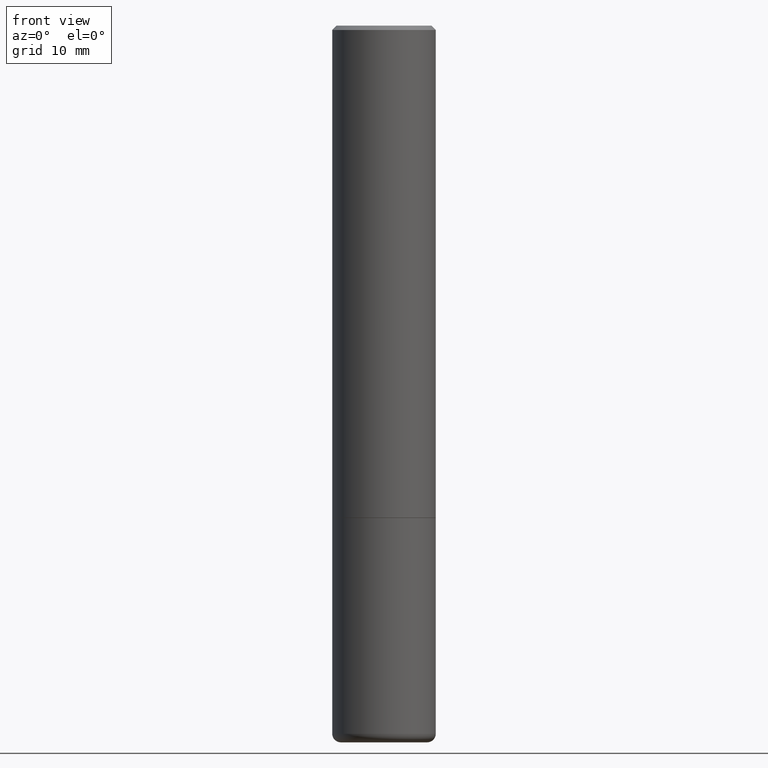
[diagram: clean part render]
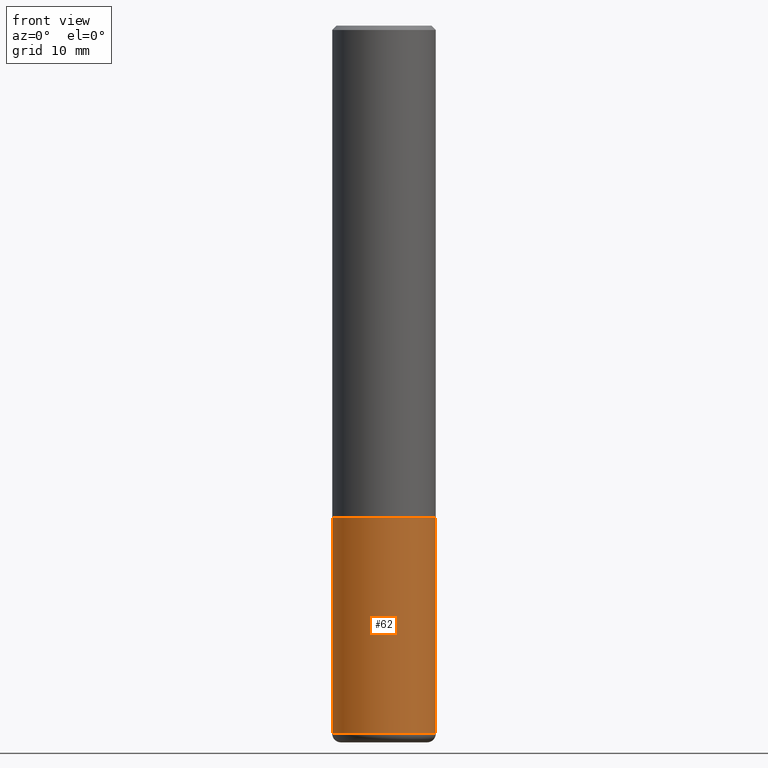
[diagram: same view with one face highlighted and labeled with its STEP entity id]
A machine part, front view. The second image highlights one B-rep face of the part: STEP entity #62.
In plain terms, the highlighted cylindrical surface (partial cylindrical patch) has radius 5.9995 mm, axis along (-0, 0, 1).
Its self-contained STEP definition (entity closure, byte-faithful):
#15 = AXIS2_PLACEMENT_3D ( 'NONE', #247, #339, #81 ) ;
#61 = LINE ( 'NONE', #167, #208 ) ;
#62 = ADVANCED_FACE ( 'NONE', ( #343 ), #254, .T. ) ;
#73 = AXIS2_PLACEMENT_3D ( 'NONE', #183, #414, #318 ) ;
#74 = VERTEX_POINT ( 'NONE', #356 ) ;
#76 = AXIS2_PLACEMENT_3D ( 'NONE', #104, #168, #388 ) ;
#81 = DIRECTION ( 'NONE',  ( 1.000000000000000000, -6.982962677686265133E-15, 0.000000000000000000 ) ) ;
#104 = CARTESIAN_POINT ( 'NONE',  ( 5.487876547960065873E-29, -7.835233272497903917E-15, -2.244100000000000428 ) ) ;
#107 = LINE ( 'NONE', #309, #204 ) ;
#112 = EDGE_CURVE ( 'NONE', #246, #205, #61, .T. ) ;
#116 = CARTESIAN_POINT ( 'NONE',  ( 0.2361999999999999933, -9.484609056967400443E-15, -2.244100000000000428 ) ) ;
#144 = ORIENTED_EDGE ( 'NONE', *, *, #382, .T. ) ;
#153 = ORIENTED_EDGE ( 'NONE', *, *, #112, .F. ) ;
#167 = CARTESIAN_POINT ( 'NONE',  ( -0.2361999999999999933, 1.678301941865356591E-15, -1.161852468318208757E-29 ) ) ;
#168 = DIRECTION ( 'NONE',  ( -2.445468806185136597E-29, 3.491481338843145583E-15, 1.000000000000000000 ) ) ;
#183 = CARTESIAN_POINT ( 'NONE',  ( 0.000000000000000000, 0.000000000000000000, 0.000000000000000000 ) ) ;
#198 = EDGE_CURVE ( 'NONE', #205, #323, #237, .T. ) ;
#202 = DIRECTION ( 'NONE',  ( -2.445468806185136877E-29, 3.491481338843145188E-15, 1.000000000000000000 ) ) ;
#204 = VECTOR ( 'NONE', #367, 39.37007874015748143 ) ;
#205 = VERTEX_POINT ( 'NONE', #362 ) ;
#208 = VECTOR ( 'NONE', #202, 39.37007874015748143 ) ;
#237 = CIRCLE ( 'NONE', #76, 0.2361999999999999933 ) ;
#241 = CIRCLE ( 'NONE', #15, 0.2361999999999999933 ) ;
#242 = ORIENTED_EDGE ( 'NONE', *, *, #324, .T. ) ;
#246 = VERTEX_POINT ( 'NONE', #310 ) ;
#247 = CARTESIAN_POINT ( 'NONE',  ( 7.894706947007477118E-29, -1.127154920618732880E-14, -3.228299999999999947 ) ) ;
#254 = CYLINDRICAL_SURFACE ( 'NONE', #73, 0.2361999999999999933 ) ;
#280 = ORIENTED_EDGE ( 'NONE', *, *, #198, .F. ) ;
#309 = CARTESIAN_POINT ( 'NONE',  ( 0.2361999999999999933, -1.649375784469496131E-15, 1.151752954443000088E-29 ) ) ;
#310 = CARTESIAN_POINT ( 'NONE',  ( -0.2362000000000000210, -9.593247264321970832E-15, -3.228299999999999947 ) ) ;
#318 = DIRECTION ( 'NONE',  ( 1.000000000000000000, -6.982962677686266711E-15, 4.876176775795936353E-29 ) ) ;
#323 = VERTEX_POINT ( 'NONE', #116 ) ;
#324 = EDGE_CURVE ( 'NONE', #246, #74, #241, .T. ) ;
#339 = DIRECTION ( 'NONE',  ( -2.445468806185136597E-29, 3.491481338843145583E-15, 1.000000000000000000 ) ) ;
#343 = FACE_OUTER_BOUND ( 'NONE', #400, .T. ) ;
#356 = CARTESIAN_POINT ( 'NONE',  ( 0.2362000000000000210, -1.292092499065682375E-14, -3.228299999999999947 ) ) ;
#362 = CARTESIAN_POINT ( 'NONE',  ( -0.2361999999999999933, -7.875089297477259967E-15, -2.244100000000000428 ) ) ;
#367 = DIRECTION ( 'NONE',  ( -2.445468806185136877E-29, 3.491481338843145188E-15, 1.000000000000000000 ) ) ;
#382 = EDGE_CURVE ( 'NONE', #74, #323, #107, .T. ) ;
#388 = DIRECTION ( 'NONE',  ( 1.000000000000000000, -6.982962677686269077E-15, 0.000000000000000000 ) ) ;
#400 = EDGE_LOOP ( 'NONE', ( #153, #242, #144, #280 ) ) ;
#414 = DIRECTION ( 'NONE',  ( -2.445468806185136597E-29, 3.491481338843145583E-15, 1.000000000000000000 ) ) ;